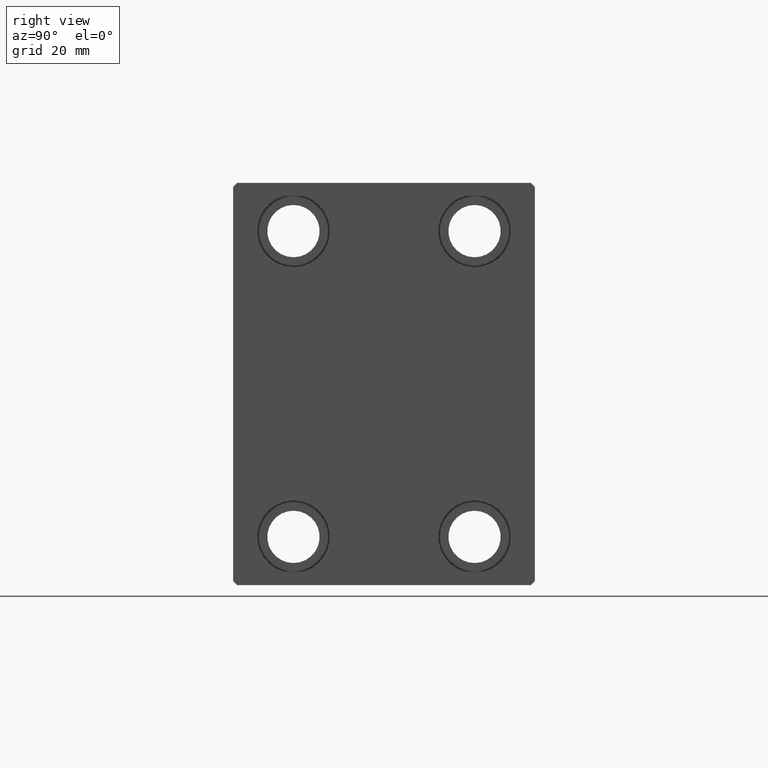
[diagram: clean part render]
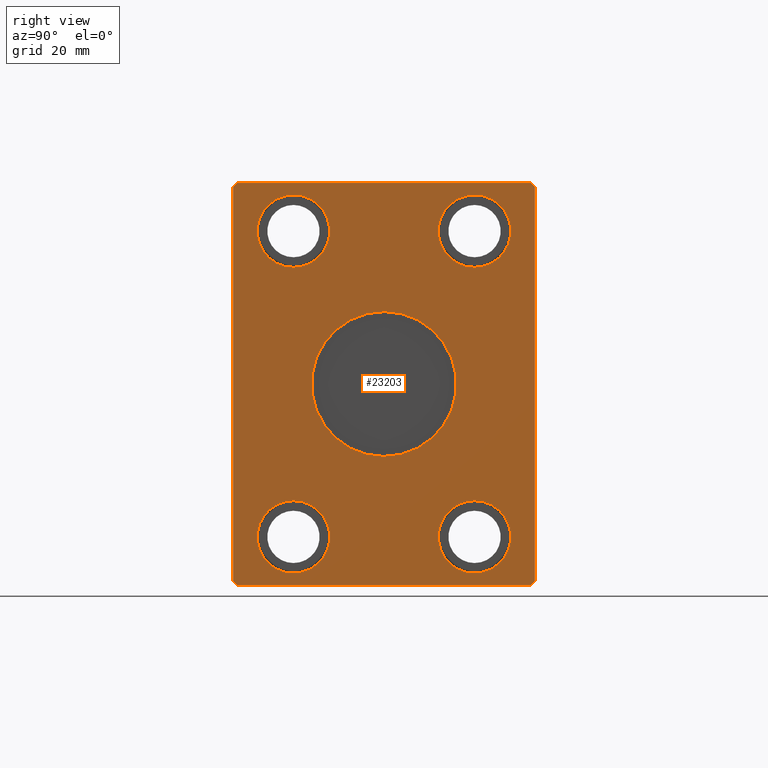
[diagram: same view with one face highlighted and labeled with its STEP entity id]
A machine part, right view. The second image highlights one B-rep face of the part: STEP entity #23203.
In plain terms, the highlighted planar face has unit normal (1, 0, 0).
Its self-contained STEP definition (entity closure, byte-faithful):
#354 = AXIS2_PLACEMENT_3D ( 'NONE', #23920, #40035, #4159 ) ;
#561 = VERTEX_POINT ( 'NONE', #17212 ) ;
#794 = CARTESIAN_POINT ( 'NONE',  ( 132.0000000000000000, -22.50000000000000000, -47.00000000000000000 ) ) ;
#1053 = CIRCLE ( 'NONE', #354, 9.000000000000001776 ) ;
#1213 = DIRECTION ( 'NONE',  ( 1.000000000000000000, -0.000000000000000000, -0.000000000000000000 ) ) ;
#1269 = CIRCLE ( 'NONE', #2675, 9.000000000000001776 ) ;
#1362 = FACE_BOUND ( 'NONE', #13120, .T. ) ;
#1662 = DIRECTION ( 'NONE',  ( -1.000000000000000000, -0.000000000000000000, -0.000000000000000000 ) ) ;
#2310 = DIRECTION ( 'NONE',  ( 0.000000000000000000, 0.000000000000000000, -1.000000000000000000 ) ) ;
#2564 = CARTESIAN_POINT ( 'NONE',  ( 132.0000000000000000, -37.50000000000001421, -49.00000000000000000 ) ) ;
#2573 = LINE ( 'NONE', #42082, #37129 ) ;
#2675 = AXIS2_PLACEMENT_3D ( 'NONE', #38359, #21814, #5496 ) ;
#3984 = VERTEX_POINT ( 'NONE', #36012 ) ;
#4159 = DIRECTION ( 'NONE',  ( 0.000000000000000000, 0.000000000000000000, -1.000000000000000000 ) ) ;
#4213 = CARTESIAN_POINT ( 'NONE',  ( 132.0000000000000000, 36.50000000000000711, 50.00000000000000000 ) ) ;
#4411 = ORIENTED_EDGE ( 'NONE', *, *, #6681, .T. ) ;
#4527 = ORIENTED_EDGE ( 'NONE', *, *, #15237, .T. ) ;
#5466 = DIRECTION ( 'NONE',  ( -1.000000000000000000, -0.000000000000000000, -0.000000000000000000 ) ) ;
#5496 = DIRECTION ( 'NONE',  ( 0.000000000000000000, 0.000000000000000000, -1.000000000000000000 ) ) ;
#5523 = CARTESIAN_POINT ( 'NONE',  ( 132.0000000000000000, 22.50000000000000000, -38.00000000000000000 ) ) ;
#5724 = CARTESIAN_POINT ( 'NONE',  ( 132.0000000000000000, 37.50000000000000711, -49.00000000000000000 ) ) ;
#5750 = ORIENTED_EDGE ( 'NONE', *, *, #32035, .T. ) ;
#5865 = ORIENTED_EDGE ( 'NONE', *, *, #42202, .F. ) ;
#6003 = VECTOR ( 'NONE', #7220, 1000.000000000000000 ) ;
#6073 = EDGE_CURVE ( 'NONE', #31704, #36957, #27049, .T. ) ;
#6225 = VERTEX_POINT ( 'NONE', #13440 ) ;
#6681 = EDGE_CURVE ( 'NONE', #10629, #35580, #36801, .T. ) ;
#6854 = ORIENTED_EDGE ( 'NONE', *, *, #35268, .T. ) ;
#7189 = CARTESIAN_POINT ( 'NONE',  ( 132.0000000000000000, 36.50000000000000711, -50.00000000000000000 ) ) ;
#7220 = DIRECTION ( 'NONE',  ( 0.000000000000000000, -1.000000000000000000, -1.901066822988281457E-16 ) ) ;
#7279 = DIRECTION ( 'NONE',  ( -1.000000000000000000, -0.000000000000000000, -0.000000000000000000 ) ) ;
#7533 = VERTEX_POINT ( 'NONE', #5724 ) ;
#8164 = ORIENTED_EDGE ( 'NONE', *, *, #8184, .F. ) ;
#8184 = EDGE_CURVE ( 'NONE', #36957, #31704, #1053, .T. ) ;
#8412 = DIRECTION ( 'NONE',  ( -1.000000000000000000, -0.000000000000000000, -0.000000000000000000 ) ) ;
#8648 = EDGE_CURVE ( 'NONE', #7533, #28629, #22774, .T. ) ;
#8928 = ORIENTED_EDGE ( 'NONE', *, *, #6073, .F. ) ;
#9621 = DIRECTION ( 'NONE',  ( 0.000000000000000000, -0.7071067811865474617, 0.7071067811865474617 ) ) ;
#9760 = DIRECTION ( 'NONE',  ( 0.000000000000000000, 0.000000000000000000, -1.000000000000000000 ) ) ;
#9794 = EDGE_LOOP ( 'NONE', ( #6854, #20645, #39483, #16546, #35649, #4411, #19375, #19995 ) ) ;
#10242 = AXIS2_PLACEMENT_3D ( 'NONE', #5523, #1662, #11740 ) ;
#10629 = VERTEX_POINT ( 'NONE', #40851 ) ;
#10917 = DIRECTION ( 'NONE',  ( 0.000000000000000000, 0.000000000000000000, -1.000000000000000000 ) ) ;
#10965 = CARTESIAN_POINT ( 'NONE',  ( 132.0000000000000000, 22.50000000000000000, -38.00000000000000000 ) ) ;
#11469 = AXIS2_PLACEMENT_3D ( 'NONE', #34892, #5466, #31676 ) ;
#11737 = DIRECTION ( 'NONE',  ( 1.000000000000000000, 0.000000000000000000, 0.000000000000000000 ) ) ;
#11740 = DIRECTION ( 'NONE',  ( 0.000000000000000000, 0.000000000000000000, 1.000000000000000000 ) ) ;
#11795 = DIRECTION ( 'NONE',  ( 0.000000000000000000, -0.7071067811865474617, -0.7071067811865474617 ) ) ;
#12015 = DIRECTION ( 'NONE',  ( 0.000000000000000000, 0.7071067811865474617, 0.7071067811865474617 ) ) ;
#12691 = CARTESIAN_POINT ( 'NONE',  ( 132.0000000000000000, -37.50000000000001421, -49.00000000000000000 ) ) ;
#13120 = EDGE_LOOP ( 'NONE', ( #4527, #17938 ) ) ;
#13273 = CARTESIAN_POINT ( 'NONE',  ( 132.0000000000000000, -22.50000000000000000, 28.99999999999999645 ) ) ;
#13440 = CARTESIAN_POINT ( 'NONE',  ( 132.0000000000000000, 22.50000000000000000, 28.99999999999999645 ) ) ;
#13544 = VERTEX_POINT ( 'NONE', #33525 ) ;
#13658 = ORIENTED_EDGE ( 'NONE', *, *, #17914, .T. ) ;
#13979 = VERTEX_POINT ( 'NONE', #31771 ) ;
#14082 = LINE ( 'NONE', #4213, #6003 ) ;
#14217 = CARTESIAN_POINT ( 'NONE',  ( 132.0000000000000000, 37.50000000000000711, 49.00000000000000000 ) ) ;
#14917 = CIRCLE ( 'NONE', #11469, 9.000000000000001776 ) ;
#14945 = EDGE_CURVE ( 'NONE', #21247, #18446, #14082, .T. ) ;
#15144 = AXIS2_PLACEMENT_3D ( 'NONE', #30278, #7279, #27470 ) ;
#15237 = EDGE_CURVE ( 'NONE', #28336, #561, #14917, .T. ) ;
#15912 = LINE ( 'NONE', #12691, #34549 ) ;
#16546 = ORIENTED_EDGE ( 'NONE', *, *, #37565, .T. ) ;
#17212 = CARTESIAN_POINT ( 'NONE',  ( 132.0000000000000000, -22.50000000000000000, 47.00000000000000000 ) ) ;
#17362 = CIRCLE ( 'NONE', #28396, 18.00000000000000000 ) ;
#17673 = VERTEX_POINT ( 'NONE', #2564 ) ;
#17843 = CIRCLE ( 'NONE', #30892, 18.00000000000000000 ) ;
#17914 = EDGE_CURVE ( 'NONE', #13544, #25556, #28098, .T. ) ;
#17938 = ORIENTED_EDGE ( 'NONE', *, *, #32311, .T. ) ;
#18446 = VERTEX_POINT ( 'NONE', #37919 ) ;
#19357 = VECTOR ( 'NONE', #9760, 1000.000000000000000 ) ;
#19375 = ORIENTED_EDGE ( 'NONE', *, *, #32541, .T. ) ;
#19681 = FACE_OUTER_BOUND ( 'NONE', #9794, .T. ) ;
#19995 = ORIENTED_EDGE ( 'NONE', *, *, #8648, .T. ) ;
#20548 = EDGE_LOOP ( 'NONE', ( #5865, #38569 ) ) ;
#20645 = ORIENTED_EDGE ( 'NONE', *, *, #14945, .T. ) ;
#21247 = VERTEX_POINT ( 'NONE', #36834 ) ;
#21404 = CARTESIAN_POINT ( 'NONE',  ( 132.0000000000000000, 22.50000000000000000, 38.00000000000000000 ) ) ;
#21659 = DIRECTION ( 'NONE',  ( 1.000000000000000000, -0.000000000000000000, -0.000000000000000000 ) ) ;
#21814 = DIRECTION ( 'NONE',  ( 1.000000000000000000, -0.000000000000000000, -0.000000000000000000 ) ) ;
#22044 = VECTOR ( 'NONE', #12015, 1000.000000000000114 ) ;
#22108 = EDGE_CURVE ( 'NONE', #23305, #6225, #1269, .T. ) ;
#22637 = CARTESIAN_POINT ( 'NONE',  ( 132.0000000000000000, 22.50000000000000000, 47.00000000000000000 ) ) ;
#22676 = AXIS2_PLACEMENT_3D ( 'NONE', #10965, #8412, #24306 ) ;
#22774 = LINE ( 'NONE', #26207, #27111 ) ;
#23203 = ADVANCED_FACE ( 'NONE', ( #33210, #1362, #29792, #19681, #39452, #29580 ), #40443, .T. ) ;
#23247 = AXIS2_PLACEMENT_3D ( 'NONE', #36219, #34003, #26558 ) ;
#23264 = EDGE_LOOP ( 'NONE', ( #27278, #36897 ) ) ;
#23305 = VERTEX_POINT ( 'NONE', #22637 ) ;
#23486 = AXIS2_PLACEMENT_3D ( 'NONE', #21404, #1213, #23974 ) ;
#23646 = EDGE_CURVE ( 'NONE', #18446, #27924, #32193, .T. ) ;
#23920 = CARTESIAN_POINT ( 'NONE',  ( 132.0000000000000000, -22.50000000000000000, -38.00000000000000000 ) ) ;
#23974 = DIRECTION ( 'NONE',  ( 0.000000000000000000, 0.000000000000000000, -1.000000000000000000 ) ) ;
#24127 = DIRECTION ( 'NONE',  ( 0.000000000000000000, 1.000000000000000000, 0.000000000000000000 ) ) ;
#24306 = DIRECTION ( 'NONE',  ( 0.000000000000000000, 0.000000000000000000, 1.000000000000000000 ) ) ;
#24514 = CARTESIAN_POINT ( 'NONE',  ( 132.0000000000000000, -22.50000000000000000, -28.99999999999999645 ) ) ;
#25117 = CARTESIAN_POINT ( 'NONE',  ( 132.0000000000000000, -36.50000000000001421, 49.99999999999998579 ) ) ;
#25342 = CARTESIAN_POINT ( 'NONE',  ( 132.0000000000000000, 36.50000000000000711, -50.00000000000000000 ) ) ;
#25556 = VERTEX_POINT ( 'NONE', #26227 ) ;
#26207 = CARTESIAN_POINT ( 'NONE',  ( 132.0000000000000000, 37.50000000000000711, -49.00000000000000000 ) ) ;
#26227 = CARTESIAN_POINT ( 'NONE',  ( 132.0000000000000000, 22.50000000000000000, -28.99999999999999645 ) ) ;
#26313 = CARTESIAN_POINT ( 'NONE',  ( 132.0000000000000000, -37.50000000000001421, 48.99999999999998579 ) ) ;
#26558 = DIRECTION ( 'NONE',  ( 0.000000000000000000, 0.000000000000000000, -1.000000000000000000 ) ) ;
#27049 = CIRCLE ( 'NONE', #32556, 9.000000000000001776 ) ;
#27111 = VECTOR ( 'NONE', #42121, 1000.000000000000000 ) ;
#27271 = CARTESIAN_POINT ( 'NONE',  ( 132.0000000000000000, -37.50000000000001421, 48.99999999999998579 ) ) ;
#27278 = ORIENTED_EDGE ( 'NONE', *, *, #38328, .F. ) ;
#27470 = DIRECTION ( 'NONE',  ( 0.000000000000000000, 0.000000000000000000, 1.000000000000000000 ) ) ;
#27473 = CARTESIAN_POINT ( 'NONE',  ( 132.0000000000000000, 0.000000000000000000, 0.000000000000000000 ) ) ;
#27924 = VERTEX_POINT ( 'NONE', #27271 ) ;
#28098 = CIRCLE ( 'NONE', #10242, 9.000000000000001776 ) ;
#28176 = CIRCLE ( 'NONE', #15144, 9.000000000000001776 ) ;
#28336 = VERTEX_POINT ( 'NONE', #13273 ) ;
#28396 = AXIS2_PLACEMENT_3D ( 'NONE', #27473, #38018, #10917 ) ;
#28629 = VERTEX_POINT ( 'NONE', #14217 ) ;
#28856 = CIRCLE ( 'NONE', #22676, 9.000000000000001776 ) ;
#29580 = FACE_BOUND ( 'NONE', #23264, .T. ) ;
#29792 = FACE_BOUND ( 'NONE', #39869, .T. ) ;
#30151 = CARTESIAN_POINT ( 'NONE',  ( 132.0000000000000000, -36.50000000000000711, -50.00000000000000000 ) ) ;
#30278 = CARTESIAN_POINT ( 'NONE',  ( 132.0000000000000000, -22.50000000000000000, 38.00000000000000000 ) ) ;
#30330 = CIRCLE ( 'NONE', #23486, 9.000000000000001776 ) ;
#30892 = AXIS2_PLACEMENT_3D ( 'NONE', #41173, #11737, #2310 ) ;
#31551 = DIRECTION ( 'NONE',  ( 0.000000000000000000, 0.000000000000000000, -1.000000000000000000 ) ) ;
#31676 = DIRECTION ( 'NONE',  ( 0.000000000000000000, 0.000000000000000000, 1.000000000000000000 ) ) ;
#31704 = VERTEX_POINT ( 'NONE', #794 ) ;
#31771 = CARTESIAN_POINT ( 'NONE',  ( 132.0000000000000000, 2.204364238465235428E-15, 18.00000000000000000 ) ) ;
#31885 = EDGE_CURVE ( 'NONE', #13979, #3984, #17843, .T. ) ;
#32035 = EDGE_CURVE ( 'NONE', #25556, #13544, #28856, .T. ) ;
#32193 = LINE ( 'NONE', #25117, #36977 ) ;
#32311 = EDGE_CURVE ( 'NONE', #561, #28336, #28176, .T. ) ;
#32541 = EDGE_CURVE ( 'NONE', #35580, #7533, #41449, .T. ) ;
#32556 = AXIS2_PLACEMENT_3D ( 'NONE', #41427, #21659, #31551 ) ;
#33210 = FACE_BOUND ( 'NONE', #20548, .T. ) ;
#33525 = CARTESIAN_POINT ( 'NONE',  ( 132.0000000000000000, 22.50000000000000000, -47.00000000000000000 ) ) ;
#34003 = DIRECTION ( 'NONE',  ( 1.000000000000000000, 0.000000000000000000, 0.000000000000000000 ) ) ;
#34467 = EDGE_LOOP ( 'NONE', ( #8928, #8164 ) ) ;
#34549 = VECTOR ( 'NONE', #35054, 1000.000000000000114 ) ;
#34892 = CARTESIAN_POINT ( 'NONE',  ( 132.0000000000000000, -22.50000000000000000, 38.00000000000000000 ) ) ;
#35054 = DIRECTION ( 'NONE',  ( 0.000000000000000000, 0.7071067811865500152, -0.7071067811865451302 ) ) ;
#35268 = EDGE_CURVE ( 'NONE', #28629, #21247, #2573, .T. ) ;
#35580 = VERTEX_POINT ( 'NONE', #7189 ) ;
#35649 = ORIENTED_EDGE ( 'NONE', *, *, #42088, .T. ) ;
#36012 = CARTESIAN_POINT ( 'NONE',  ( 132.0000000000000000, 0.000000000000000000, -18.00000000000000000 ) ) ;
#36219 = CARTESIAN_POINT ( 'NONE',  ( 132.0000000000000000, 0.000000000000000000, 0.000000000000000000 ) ) ;
#36801 = LINE ( 'NONE', #30151, #42182 ) ;
#36834 = CARTESIAN_POINT ( 'NONE',  ( 132.0000000000000000, 36.50000000000000711, 50.00000000000000000 ) ) ;
#36897 = ORIENTED_EDGE ( 'NONE', *, *, #22108, .F. ) ;
#36957 = VERTEX_POINT ( 'NONE', #24514 ) ;
#36977 = VECTOR ( 'NONE', #11795, 1000.000000000000114 ) ;
#37129 = VECTOR ( 'NONE', #9621, 1000.000000000000114 ) ;
#37565 = EDGE_CURVE ( 'NONE', #27924, #17673, #39412, .T. ) ;
#37919 = CARTESIAN_POINT ( 'NONE',  ( 132.0000000000000000, -36.50000000000001421, 49.99999999999998579 ) ) ;
#38018 = DIRECTION ( 'NONE',  ( 1.000000000000000000, 0.000000000000000000, 0.000000000000000000 ) ) ;
#38328 = EDGE_CURVE ( 'NONE', #6225, #23305, #30330, .T. ) ;
#38359 = CARTESIAN_POINT ( 'NONE',  ( 132.0000000000000000, 22.50000000000000000, 38.00000000000000000 ) ) ;
#38569 = ORIENTED_EDGE ( 'NONE', *, *, #31885, .F. ) ;
#39412 = LINE ( 'NONE', #26313, #19357 ) ;
#39452 = FACE_BOUND ( 'NONE', #34467, .T. ) ;
#39483 = ORIENTED_EDGE ( 'NONE', *, *, #23646, .T. ) ;
#39869 = EDGE_LOOP ( 'NONE', ( #13658, #5750 ) ) ;
#40035 = DIRECTION ( 'NONE',  ( 1.000000000000000000, -0.000000000000000000, -0.000000000000000000 ) ) ;
#40443 = PLANE ( 'NONE',  #23247 ) ;
#40851 = CARTESIAN_POINT ( 'NONE',  ( 132.0000000000000000, -36.50000000000000711, -50.00000000000000000 ) ) ;
#41173 = CARTESIAN_POINT ( 'NONE',  ( 132.0000000000000000, 0.000000000000000000, 0.000000000000000000 ) ) ;
#41427 = CARTESIAN_POINT ( 'NONE',  ( 132.0000000000000000, -22.50000000000000000, -38.00000000000000000 ) ) ;
#41449 = LINE ( 'NONE', #25342, #22044 ) ;
#42082 = CARTESIAN_POINT ( 'NONE',  ( 132.0000000000000000, 37.50000000000000711, 49.00000000000000000 ) ) ;
#42088 = EDGE_CURVE ( 'NONE', #17673, #10629, #15912, .T. ) ;
#42121 = DIRECTION ( 'NONE',  ( 0.000000000000000000, 0.000000000000000000, 1.000000000000000000 ) ) ;
#42182 = VECTOR ( 'NONE', #24127, 1000.000000000000000 ) ;
#42202 = EDGE_CURVE ( 'NONE', #3984, #13979, #17362, .T. ) ;